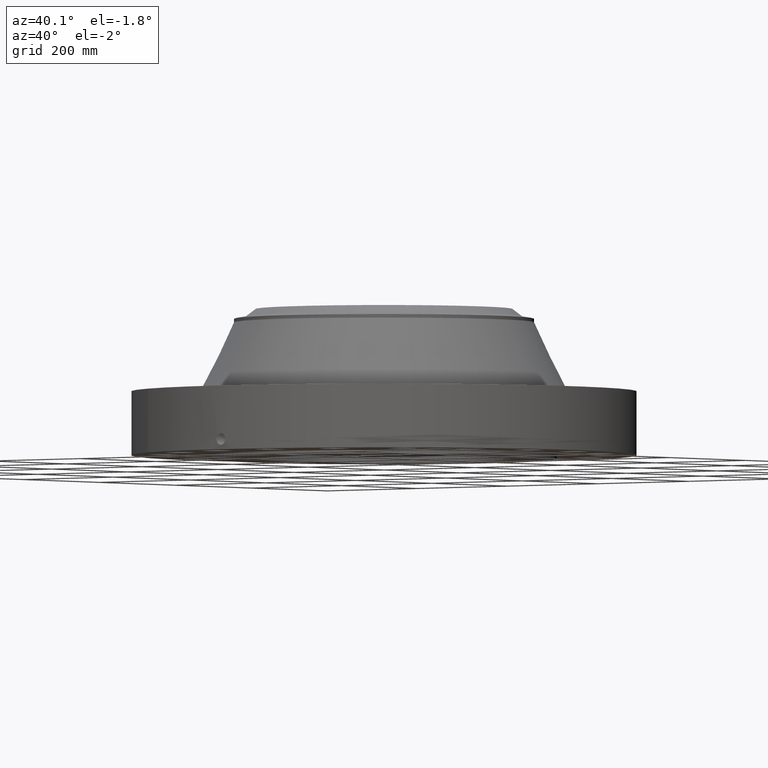
[diagram: clean part render]
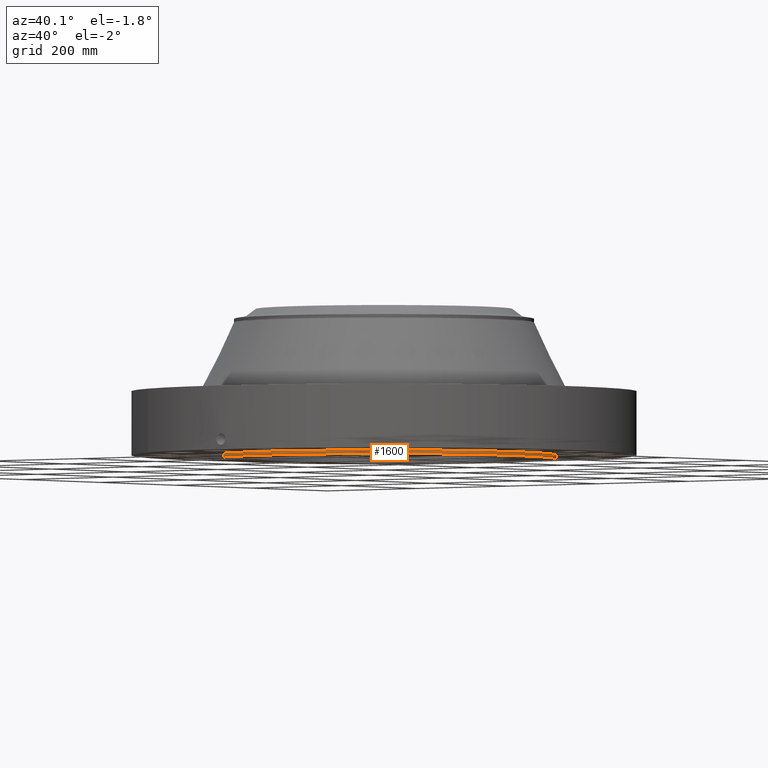
[diagram: same view with one face highlighted and labeled with its STEP entity id]
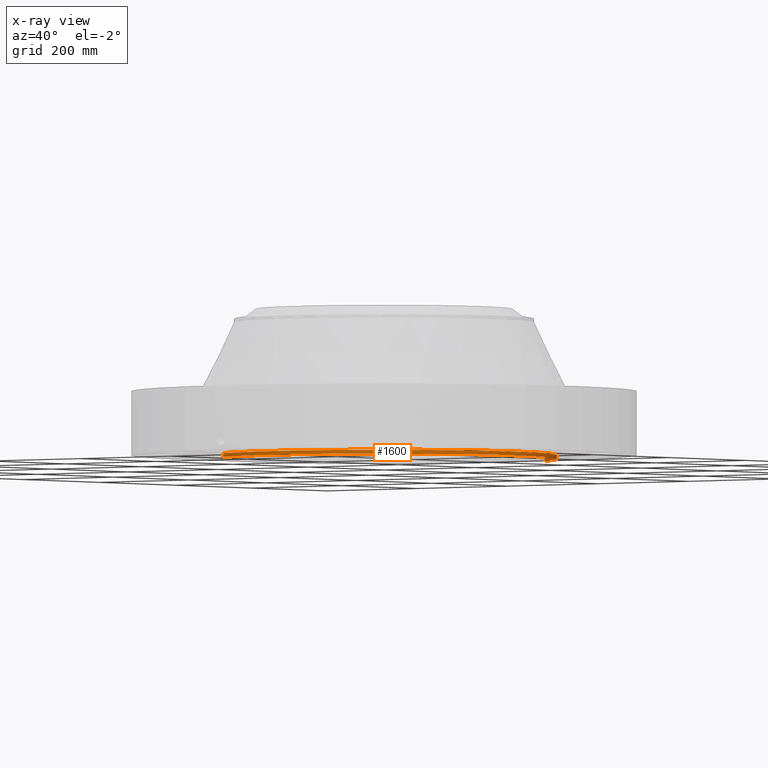
[diagram: x-ray of the same camera — body ghosted, the highlighted face saturated]
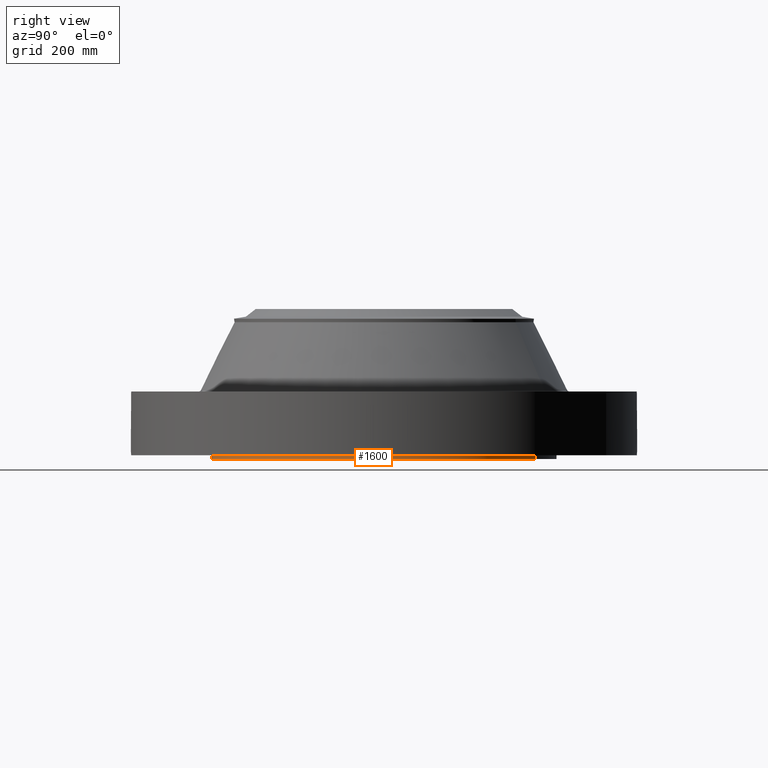
[diagram: same view with one face highlighted and labeled with its STEP entity id]
A machine part, auxiliary view. The second image highlights one B-rep face of the part: STEP entity #1600.
The next image is the same camera in x-ray: the body ghosted, the highlighted face saturated — about 0% of this face is hidden behind the body in this view.
A second angle (right view) of the same face is appended — the face is thin or edge-on in the first view.
In plain terms, the highlighted cylindrical surface (partial cylindrical patch) has radius 292.1 mm, axis along (0, 0, -1).
Its self-contained STEP definition (entity closure, byte-faithful):
#262=AXIS2_PLACEMENT_3D('Circle Axis2P3D',#260,#261,$) ;
#1573=AXIS2_PLACEMENT_3D('Cylinder Axis2P3D',#1570,#1571,#1572) ;
#1577=AXIS2_PLACEMENT_3D('Circle Axis2P3D',#1575,#1576,$) ;
#260=CARTESIAN_POINT('Axis2P3D Location',(0.,0.,0.250000000001)) ;
#264=CARTESIAN_POINT('Vertex',(5.51339369397,10.0921994618,0.250000000001)) ;
#266=CARTESIAN_POINT('Vertex',(-5.51339369397,-10.0921994618,0.250000000001)) ;
#1570=CARTESIAN_POINT('Axis2P3D Location',(0.,0.,5.00000000002)) ;
#1575=CARTESIAN_POINT('Axis2P3D Location',(0.,0.,1.1189649382E-015)) ;
#1579=CARTESIAN_POINT('Vertex',(5.51339369397,10.0921994618,1.1189649382E-015)) ;
#1581=CARTESIAN_POINT('Vertex',(-5.51339369397,-10.0921994618,1.1189649382E-015)) ;
#1584=CARTESIAN_POINT('Line Origine',(5.51339369397,10.0921994618,0.125000000001)) ;
#1589=CARTESIAN_POINT('Line Origine',(-5.51339369397,-10.0921994618,0.125000000001)) ;
#261=DIRECTION('Axis2P3D Direction',(0.,0.,-0.0393700787402)) ;
#1571=DIRECTION('Axis2P3D Direction',(0.,0.,-0.0393700787402)) ;
#1572=DIRECTION('Axis2P3D XDirection',(-0.0188750212049,-0.0345504945626,0.)) ;
#1576=DIRECTION('Axis2P3D Direction',(0.,0.,-0.0393700787402)) ;
#1585=DIRECTION('Vector Direction',(0.,0.,-0.0393700787402)) ;
#1590=DIRECTION('Vector Direction',(0.,0.,-0.0393700787402)) ;
#1586=VECTOR('Line Direction',#1585,0.0393700787402) ;
#1591=VECTOR('Line Direction',#1590,0.0393700787402) ;
#1595=ORIENTED_EDGE('',*,*,#1583,.F.) ;
#1596=ORIENTED_EDGE('',*,*,#1588,.T.) ;
#1597=ORIENTED_EDGE('',*,*,#268,.T.) ;
#1598=ORIENTED_EDGE('',*,*,#1593,.F.) ;
#1600=ADVANCED_FACE('PartBody',(#1599),#1574,.T.) ;
#263=CIRCLE('generated circle',#262,11.5) ;
#1578=CIRCLE('generated circle',#1577,11.5) ;
#1574=CYLINDRICAL_SURFACE('generated cylinder',#1573,11.5) ;
#268=EDGE_CURVE('',#265,#267,#263,.T.) ;
#1583=EDGE_CURVE('',#1580,#1582,#1578,.T.) ;
#1588=EDGE_CURVE('',#1580,#265,#1587,.F.) ;
#1593=EDGE_CURVE('',#1582,#267,#1592,.F.) ;
#1594=EDGE_LOOP('',(#1595,#1596,#1597,#1598)) ;
#1599=FACE_OUTER_BOUND('',#1594,.T.) ;
#1587=LINE('Line',#1584,#1586) ;
#1592=LINE('Line',#1589,#1591) ;
#265=VERTEX_POINT('',#264) ;
#267=VERTEX_POINT('',#266) ;
#1580=VERTEX_POINT('',#1579) ;
#1582=VERTEX_POINT('',#1581) ;